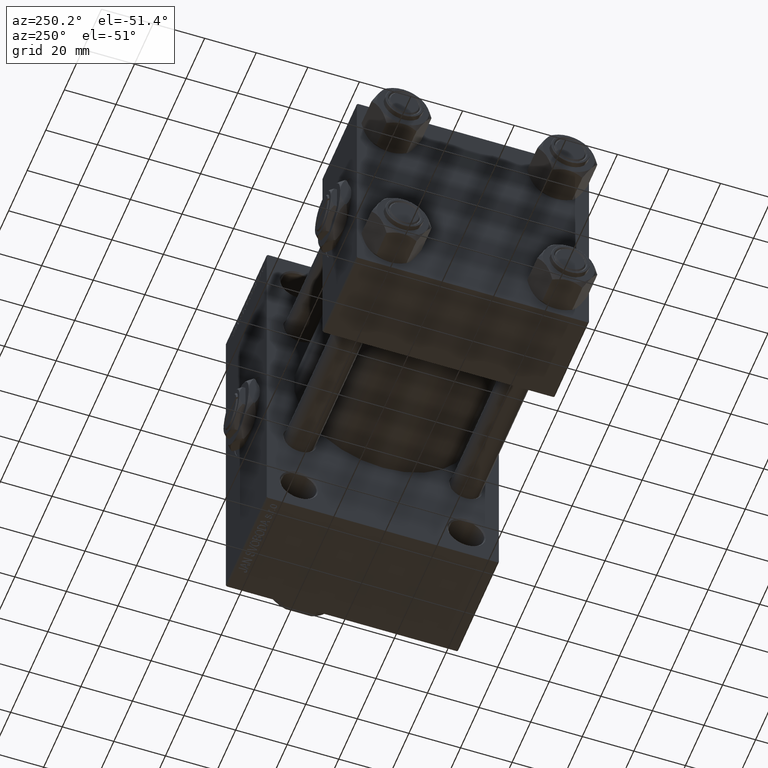
[diagram: clean part render]
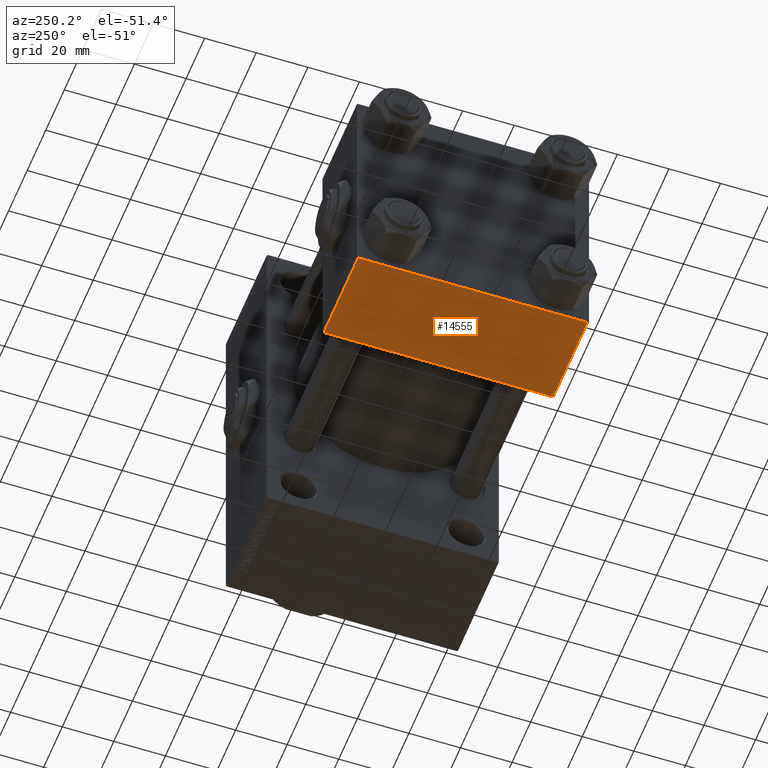
[diagram: same view with one face highlighted and labeled with its STEP entity id]
A machine part, auxiliary view. The second image highlights one B-rep face of the part: STEP entity #14555.
In plain terms, the highlighted planar face has unit normal (0, 0, -1).
Its self-contained STEP definition (entity closure, byte-faithful):
#640 = DIRECTION ( 'NONE',  ( 0.000000000000000000, -1.000000000000000000, -1.541976423090495633E-16 ) ) ;
#4128 = LINE ( 'NONE', #11852, #27630 ) ;
#4844 = DIRECTION ( 'NONE',  ( 0.000000000000000000, -1.000000000000000000, -1.541976423090495633E-16 ) ) ;
#7529 = CARTESIAN_POINT ( 'NONE',  ( 0.000000000000000000, -44.49999999999998579, -45.00000000000000000 ) ) ;
#7704 = AXIS2_PLACEMENT_3D ( 'NONE', #26595, #26111, #22869 ) ;
#8587 = LINE ( 'NONE', #23549, #20487 ) ;
#8945 = VECTOR ( 'NONE', #4844, 1000.000000000000000 ) ;
#9334 = CARTESIAN_POINT ( 'NONE',  ( 37.00000000000000000, 44.49999999999998579, -44.99999999999998579 ) ) ;
#10464 = CARTESIAN_POINT ( 'NONE',  ( 0.000000000000000000, -44.49999999999995737, -45.00000000000000000 ) ) ;
#10900 = ORIENTED_EDGE ( 'NONE', *, *, #45989, .T. ) ;
#10906 = FACE_OUTER_BOUND ( 'NONE', #33516, .T. ) ;
#11774 = ORIENTED_EDGE ( 'NONE', *, *, #15715, .T. ) ;
#11852 = CARTESIAN_POINT ( 'NONE',  ( 37.00000000000000000, 44.99999999999998579, -44.99999999999998579 ) ) ;
#12559 = VERTEX_POINT ( 'NONE', #20505 ) ;
#14555 = ADVANCED_FACE ( 'NONE', ( #10906 ), #41323, .T. ) ;
#15715 = EDGE_CURVE ( 'NONE', #12559, #36884, #8587, .T. ) ;
#16088 = CARTESIAN_POINT ( 'NONE',  ( 0.000000000000000000, 44.99999999999998579, -44.99999999999998579 ) ) ;
#20487 = VECTOR ( 'NONE', #38756, 1000.000000000000000 ) ;
#20505 = CARTESIAN_POINT ( 'NONE',  ( 0.000000000000000000, 44.49999999999998579, -44.99999999999998579 ) ) ;
#21731 = VERTEX_POINT ( 'NONE', #47083 ) ;
#22869 = DIRECTION ( 'NONE',  ( 0.000000000000000000, 1.000000000000000000, 1.541976423090495880E-16 ) ) ;
#22992 = DIRECTION ( 'NONE',  ( -1.000000000000000000, 0.000000000000000000, 0.000000000000000000 ) ) ;
#23549 = CARTESIAN_POINT ( 'NONE',  ( 37.00000000000000000, 44.49999999999998579, -44.99999999999998579 ) ) ;
#23550 = LINE ( 'NONE', #16088, #8945 ) ;
#26111 = DIRECTION ( 'NONE',  ( 0.000000000000000000, 1.541976423090495880E-16, -1.000000000000000000 ) ) ;
#26483 = LINE ( 'NONE', #7529, #39710 ) ;
#26595 = CARTESIAN_POINT ( 'NONE',  ( 37.00000000000000000, 44.99999999999998579, -44.99999999999998579 ) ) ;
#27630 = VECTOR ( 'NONE', #640, 1000.000000000000000 ) ;
#31827 = EDGE_CURVE ( 'NONE', #12559, #38577, #23550, .T. ) ;
#33516 = EDGE_LOOP ( 'NONE', ( #39694, #11774, #46555, #10900 ) ) ;
#36884 = VERTEX_POINT ( 'NONE', #9334 ) ;
#38577 = VERTEX_POINT ( 'NONE', #10464 ) ;
#38756 = DIRECTION ( 'NONE',  ( 1.000000000000000000, 0.000000000000000000, 0.000000000000000000 ) ) ;
#39694 = ORIENTED_EDGE ( 'NONE', *, *, #31827, .F. ) ;
#39710 = VECTOR ( 'NONE', #22992, 1000.000000000000000 ) ;
#41323 = PLANE ( 'NONE',  #7704 ) ;
#42940 = EDGE_CURVE ( 'NONE', #36884, #21731, #4128, .T. ) ;
#45989 = EDGE_CURVE ( 'NONE', #21731, #38577, #26483, .T. ) ;
#46555 = ORIENTED_EDGE ( 'NONE', *, *, #42940, .T. ) ;
#47083 = CARTESIAN_POINT ( 'NONE',  ( 37.00000000000000000, -44.49999999999995737, -45.00000000000000000 ) ) ;